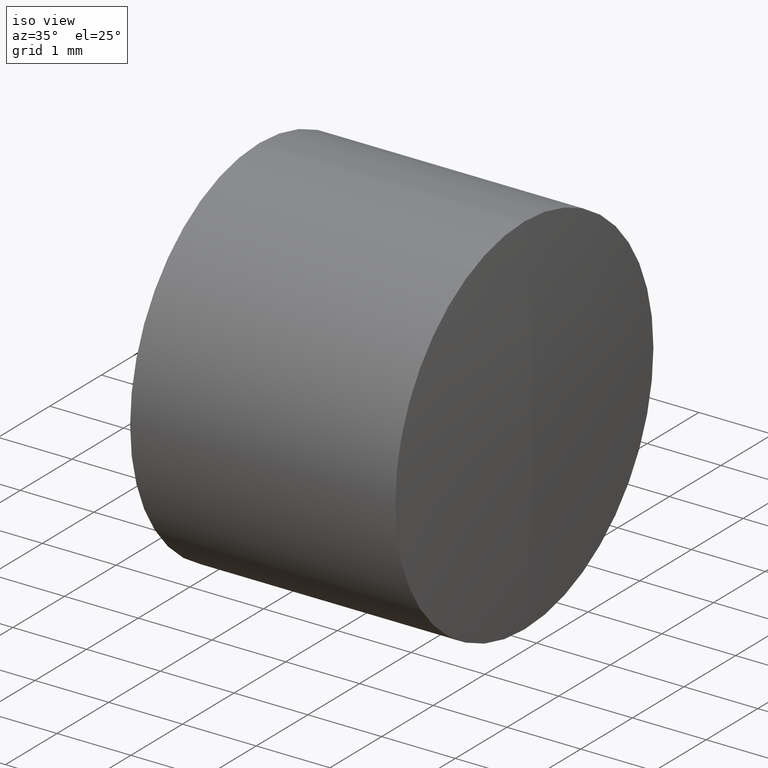
[diagram: clean part render]
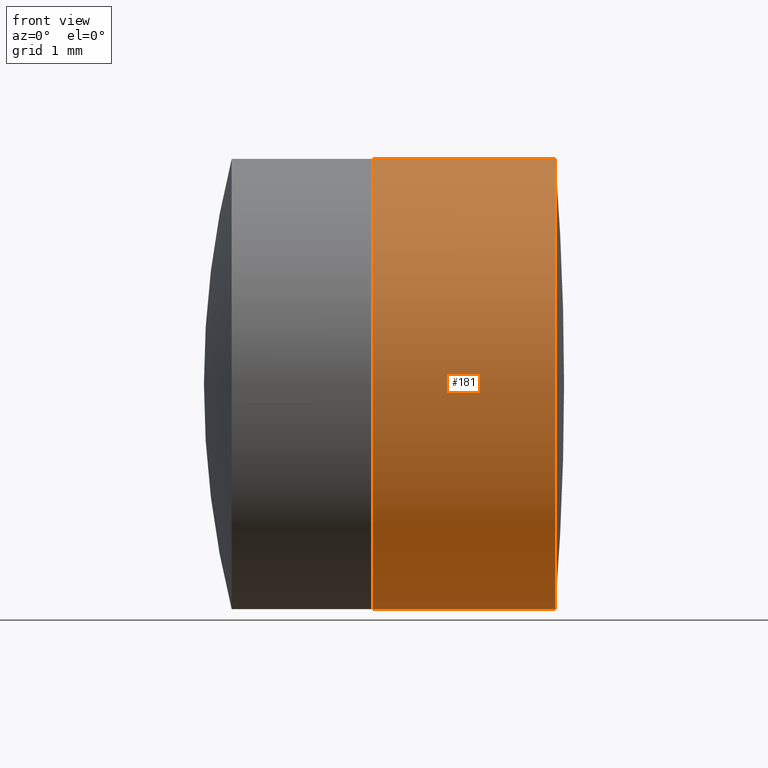
[diagram: tour spotlight — one face highlighted and labeled with its STEP entity id]
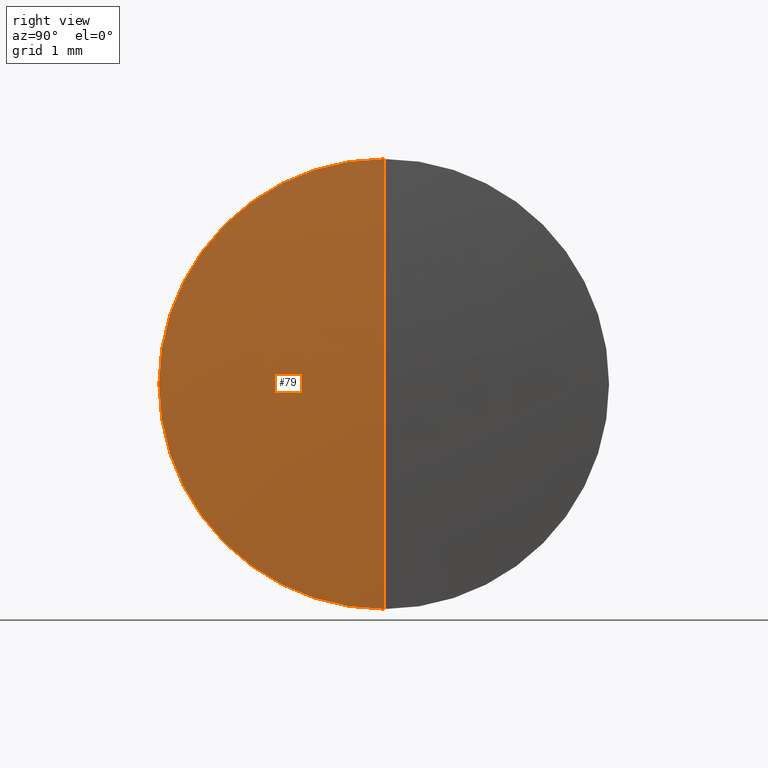
[diagram: tour spotlight — one face highlighted and labeled with its STEP entity id]
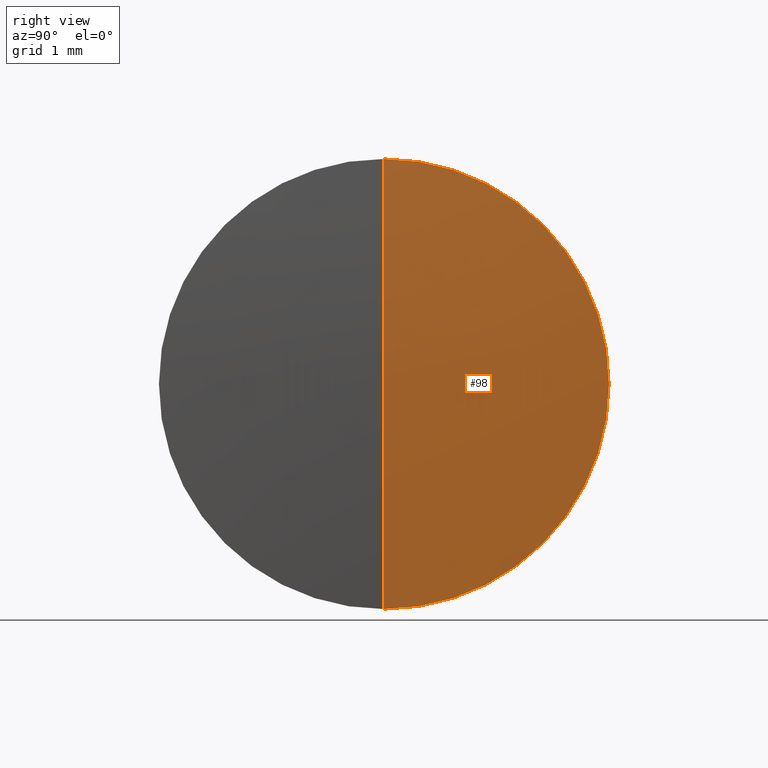
[diagram: tour spotlight — one face highlighted and labeled with its STEP entity id]
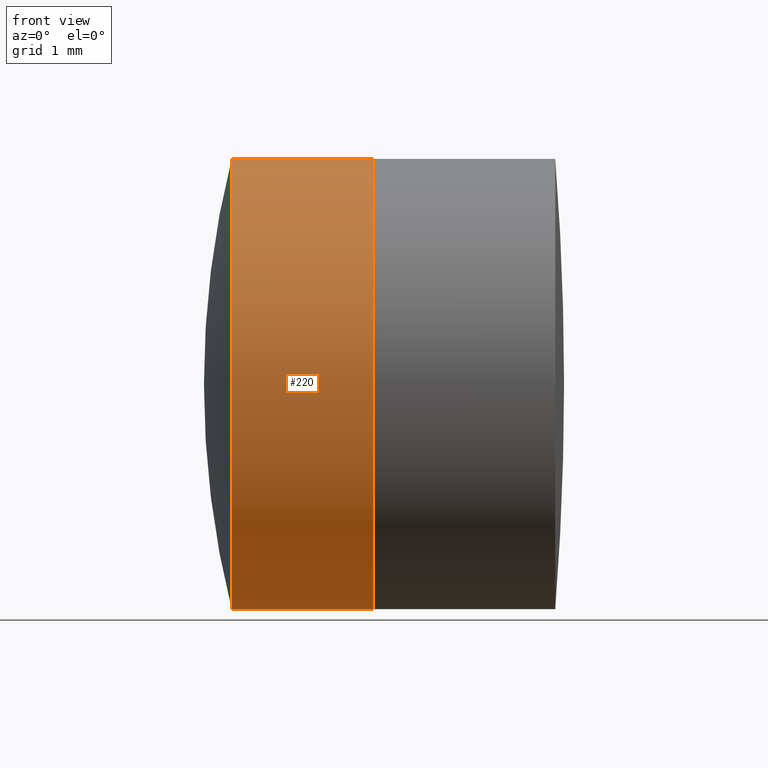
[diagram: tour spotlight — one face highlighted and labeled with its STEP entity id]
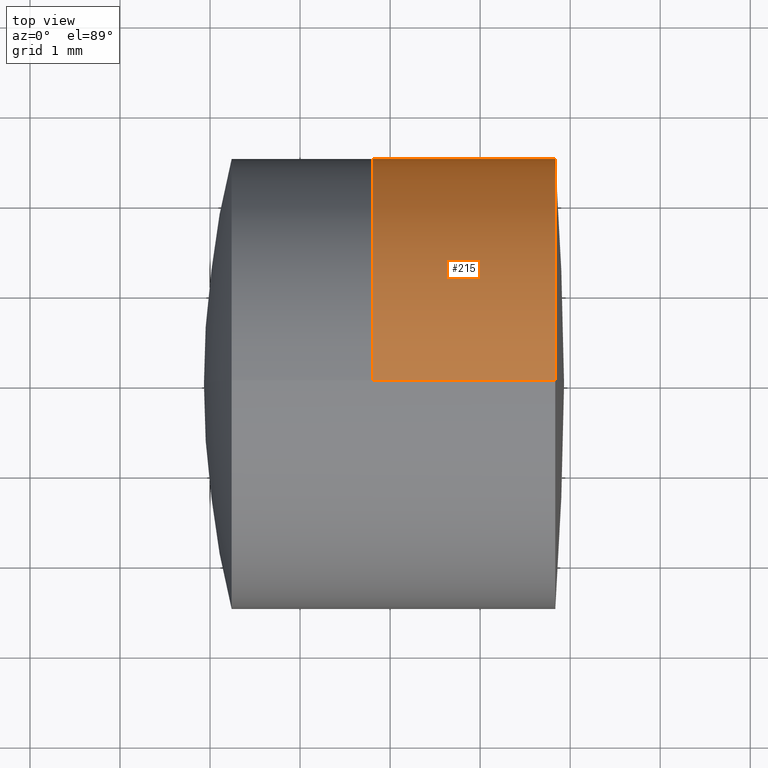
[diagram: tour spotlight — one face highlighted and labeled with its STEP entity id]
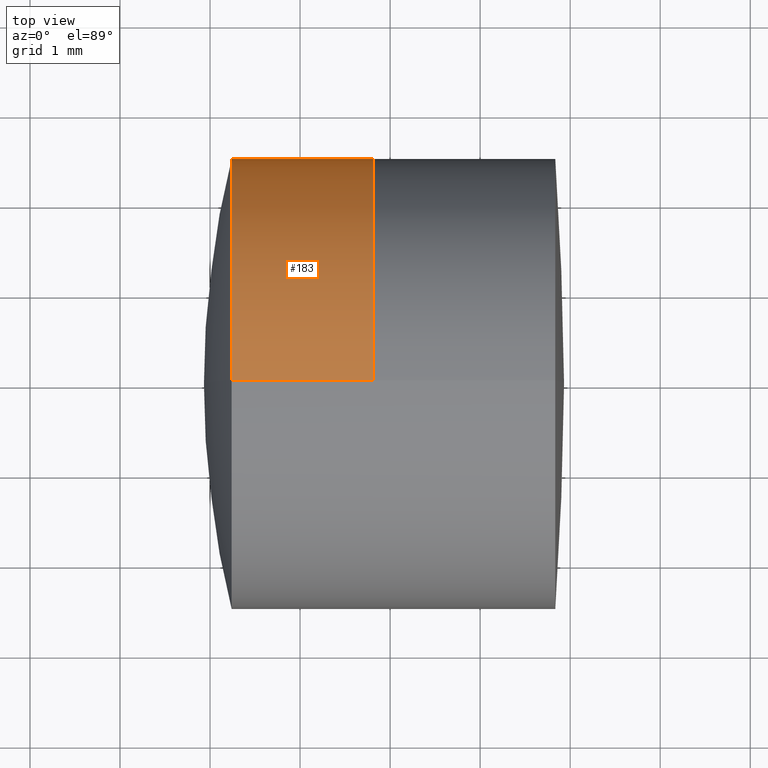
[diagram: tour spotlight — one face highlighted and labeled with its STEP entity id]
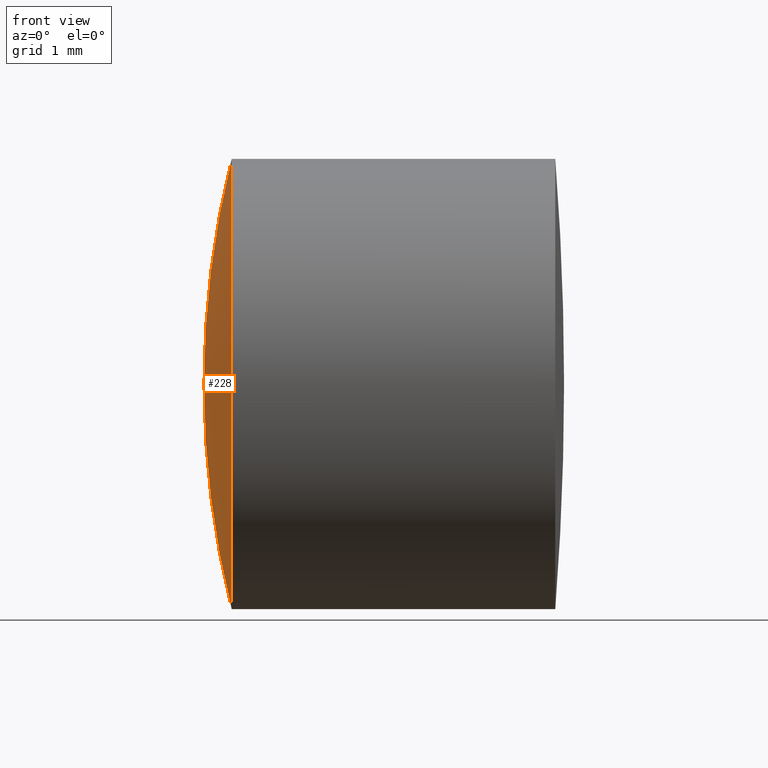
[diagram: tour spotlight — one face highlighted and labeled with its STEP entity id]
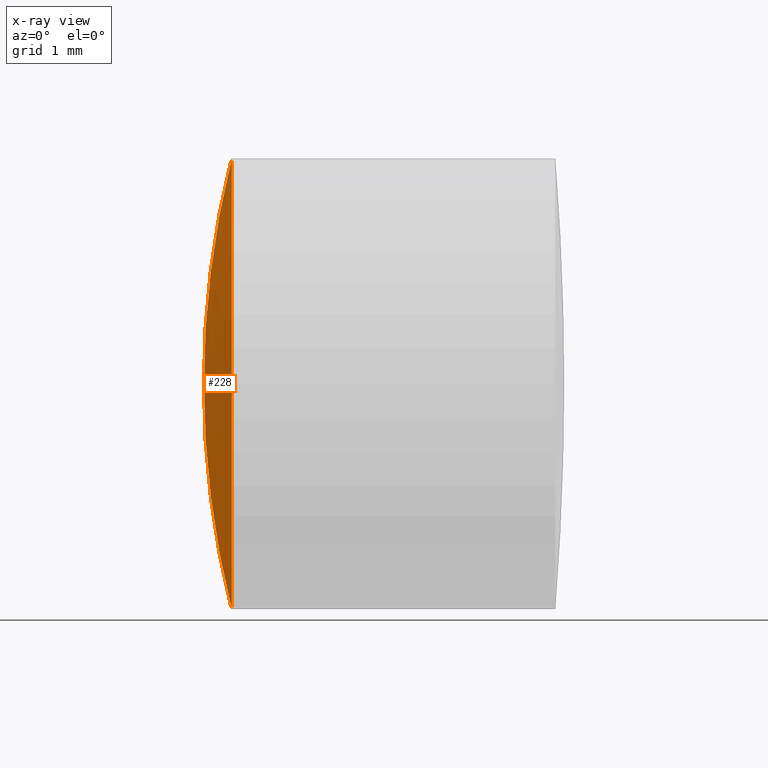
[diagram: x-ray of the same camera — body ghosted, this tour face saturated]
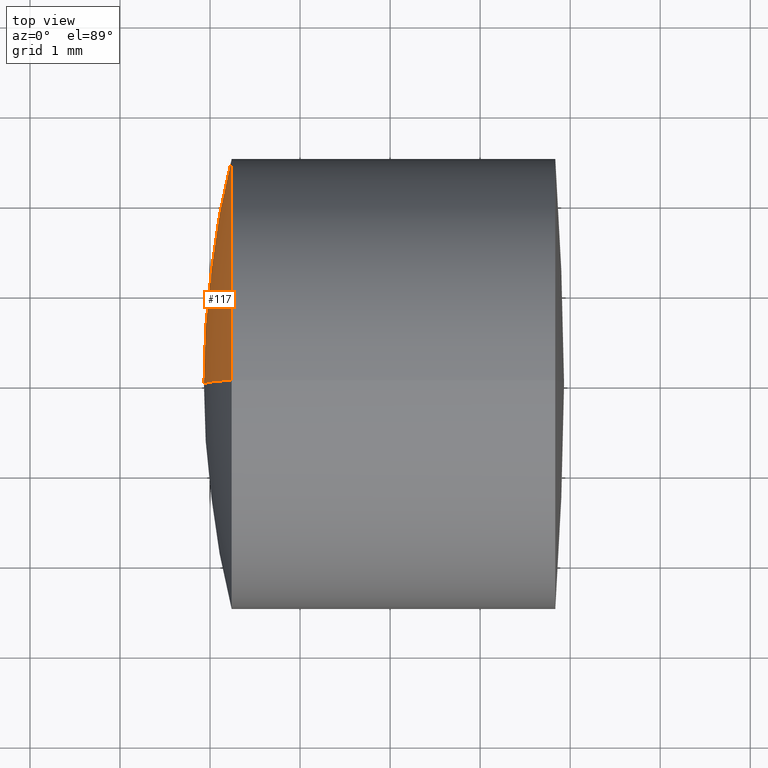
[diagram: tour spotlight — one face highlighted and labeled with its STEP entity id]
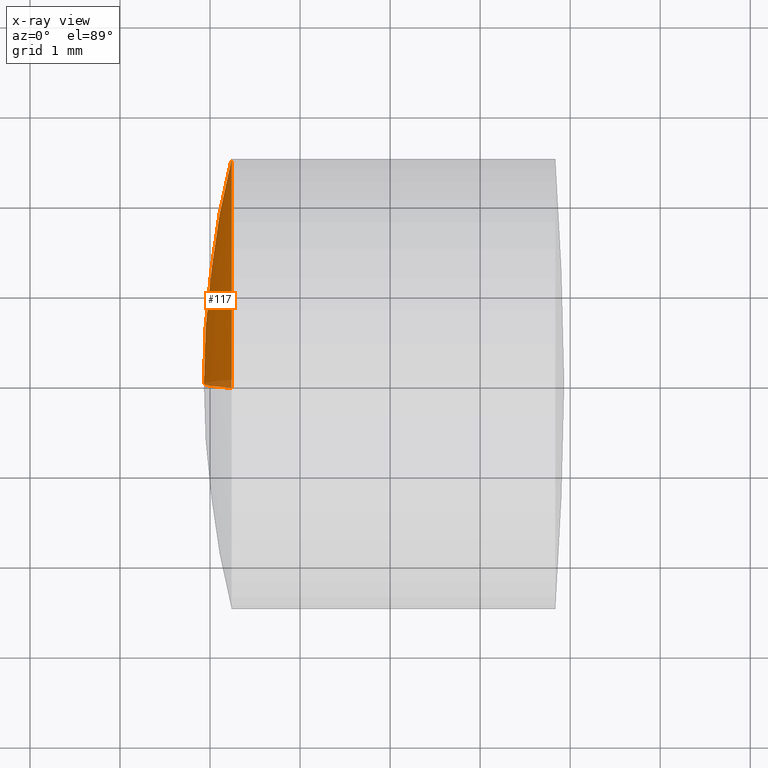
[diagram: x-ray of the same camera — body ghosted, this tour face saturated]
A machine part: a face-by-face anatomy tour. The part has 12 B-rep faces; the first image is the clean iso view, then the 8 largest visible faces are spotlighted one at a time (largest first), each with its STEP entity span.

Face 1 — front view, entity #181. In plain terms, the highlighted cylindrical surface (partial cylindrical patch) has radius 2.5 mm, axis along (-1, -0, -0).
Definition (entity closure, byte-faithful):
#4 = EDGE_CURVE ( 'NONE', #38, #26, #173, .T. ) ;
#9 = EDGE_CURVE ( 'NONE', #234, #38, #161, .T. ) ;
#26 = VERTEX_POINT ( 'NONE', #187 ) ;
#38 = VERTEX_POINT ( 'NONE', #176 ) ;
#65 = CARTESIAN_POINT ( 'NONE',  ( -0.5519199926577972300, 3.061616997868384100E-016, -2.500000000000000900 ) ) ;
#66 = ORIENTED_EDGE ( 'NONE', *, *, #4, .T. ) ;
#72 = AXIS2_PLACEMENT_3D ( 'NONE', #139, #337, #141 ) ;
#75 = CARTESIAN_POINT ( 'NONE',  ( -0.5519199926577972300, 0.0000000000000000000, 2.500000000000000900 ) ) ;
#82 = CIRCLE ( 'NONE', #72, 2.500000000000001300 ) ;
#104 = EDGE_LOOP ( 'NONE', ( #252, #168, #66, #120 ) ) ;
#120 = ORIENTED_EDGE ( 'NONE', *, *, #222, .F. ) ;
#121 = CARTESIAN_POINT ( 'NONE',  ( 264.8346489604336400, 3.061616997868384100E-016, -2.500000000000000400 ) ) ;
#125 = DIRECTION ( 'NONE',  ( 0.0000000000000000000, 0.0000000000000000000, 1.000000000000000000 ) ) ;
#126 = CARTESIAN_POINT ( 'NONE',  ( 264.8346489604336400, 0.0000000000000000000, 0.0000000000000000000 ) ) ;
#139 = CARTESIAN_POINT ( 'NONE',  ( 262.8091958044815900, 0.0000000000000000000, 0.0000000000000000000 ) ) ;
#141 = DIRECTION ( 'NONE',  ( 0.0000000000000000000, 0.0000000000000000000, 1.000000000000000000 ) ) ;
#144 = DIRECTION ( 'NONE',  ( -1.000000000000000000, -0.0000000000000000000, -0.0000000000000000000 ) ) ;
#150 = VECTOR ( 'NONE', #272, 1000.000000000000000 ) ;
#161 = CIRCLE ( 'NONE', #310, 2.500000000000000400 ) ;
#163 = DIRECTION ( 'NONE',  ( -1.000000000000000000, -0.0000000000000000000, -0.0000000000000000000 ) ) ;
#166 = AXIS2_PLACEMENT_3D ( 'NONE', #172, #144, #312 ) ;
#167 = CYLINDRICAL_SURFACE ( 'NONE', #166, 2.500000000000000900 ) ;
#168 = ORIENTED_EDGE ( 'NONE', *, *, #9, .T. ) ;
#172 = CARTESIAN_POINT ( 'NONE',  ( -0.5519199926577972300, 0.0000000000000000000, 0.0000000000000000000 ) ) ;
#173 = LINE ( 'NONE', #75, #150 ) ;
#176 = CARTESIAN_POINT ( 'NONE',  ( 264.8346489604336400, 0.0000000000000000000, 2.500000000000000400 ) ) ;
#181 = ADVANCED_FACE ( 'NONE', ( #334 ), #167, .T. ) ;
#187 = CARTESIAN_POINT ( 'NONE',  ( 262.8091958044815900, 0.0000000000000000000, 2.500000000000001300 ) ) ;
#201 = VERTEX_POINT ( 'NONE', #250 ) ;
#218 = EDGE_CURVE ( 'NONE', #234, #201, #257, .T. ) ;
#222 = EDGE_CURVE ( 'NONE', #201, #26, #82, .T. ) ;
#234 = VERTEX_POINT ( 'NONE', #121 ) ;
#244 = VECTOR ( 'NONE', #260, 1000.000000000000000 ) ;
#250 = CARTESIAN_POINT ( 'NONE',  ( 262.8091958044815900, 3.061616997868385100E-016, -2.500000000000001300 ) ) ;
#252 = ORIENTED_EDGE ( 'NONE', *, *, #218, .F. ) ;
#257 = LINE ( 'NONE', #65, #244 ) ;
#260 = DIRECTION ( 'NONE',  ( -1.000000000000000000, -0.0000000000000000000, -0.0000000000000000000 ) ) ;
#272 = DIRECTION ( 'NONE',  ( -1.000000000000000000, -0.0000000000000000000, -0.0000000000000000000 ) ) ;
#310 = AXIS2_PLACEMENT_3D ( 'NONE', #126, #163, #125 ) ;
#312 = DIRECTION ( 'NONE',  ( 0.0000000000000000000, 0.0000000000000000000, 1.000000000000000000 ) ) ;
#334 = FACE_OUTER_BOUND ( 'NONE', #104, .T. ) ;
#337 = DIRECTION ( 'NONE',  ( -1.000000000000000000, -0.0000000000000000000, -0.0000000000000000000 ) ) ;

Face 2 — right view, entity #79. In plain terms, the highlighted spherical surface has radius 32.1 mm.
Definition (entity closure, byte-faithful):
#9 = EDGE_CURVE ( 'NONE', #234, #38, #161, .T. ) ;
#19 = SPHERICAL_SURFACE ( 'NONE', #238, 32.09999999999994500 ) ;
#28 = ORIENTED_EDGE ( 'NONE', *, *, #9, .F. ) ;
#32 = DIRECTION ( 'NONE',  ( 0.0000000000000000000, 0.0000000000000000000, 1.000000000000000000 ) ) ;
#38 = VERTEX_POINT ( 'NONE', #176 ) ;
#45 = EDGE_LOOP ( 'NONE', ( #245, #153, #28 ) ) ;
#63 = DIRECTION ( 'NONE',  ( 0.0000000000000000000, -1.224646799147353000E-016, 1.000000000000000000 ) ) ;
#68 = CARTESIAN_POINT ( 'NONE',  ( 232.8321490580823100, 0.0000000000000000000, 0.0000000000000000000 ) ) ;
#79 = ADVANCED_FACE ( 'NONE', ( #256 ), #19, .T. ) ;
#111 = CIRCLE ( 'NONE', #291, 32.09999999999994500 ) ;
#121 = CARTESIAN_POINT ( 'NONE',  ( 264.8346489604336400, 3.061616997868384100E-016, -2.500000000000000400 ) ) ;
#125 = DIRECTION ( 'NONE',  ( 0.0000000000000000000, 0.0000000000000000000, 1.000000000000000000 ) ) ;
#126 = CARTESIAN_POINT ( 'NONE',  ( 264.8346489604336400, 0.0000000000000000000, 0.0000000000000000000 ) ) ;
#147 = CIRCLE ( 'NONE', #286, 32.09999999999994500 ) ;
#153 = ORIENTED_EDGE ( 'NONE', *, *, #159, .T. ) ;
#159 = EDGE_CURVE ( 'NONE', #227, #38, #147, .T. ) ;
#161 = CIRCLE ( 'NONE', #310, 2.500000000000000400 ) ;
#163 = DIRECTION ( 'NONE',  ( -1.000000000000000000, -0.0000000000000000000, -0.0000000000000000000 ) ) ;
#164 = DIRECTION ( 'NONE',  ( 0.0000000000000000000, -1.000000000000000000, 0.0000000000000000000 ) ) ;
#176 = CARTESIAN_POINT ( 'NONE',  ( 264.8346489604336400, 0.0000000000000000000, 2.500000000000000400 ) ) ;
#182 = DIRECTION ( 'NONE',  ( 0.0000000000000000000, 1.000000000000000000, 0.0000000000000000000 ) ) ;
#188 = CARTESIAN_POINT ( 'NONE',  ( 232.8321490580823100, 0.0000000000000000000, 0.0000000000000000000 ) ) ;
#223 = CARTESIAN_POINT ( 'NONE',  ( 264.9321490580822500, 0.0000000000000000000, 1.965558112631498300E-015 ) ) ;
#227 = VERTEX_POINT ( 'NONE', #223 ) ;
#234 = VERTEX_POINT ( 'NONE', #121 ) ;
#235 = CARTESIAN_POINT ( 'NONE',  ( 232.8321490580823100, 0.0000000000000000000, 0.0000000000000000000 ) ) ;
#238 = AXIS2_PLACEMENT_3D ( 'NONE', #188, #182, #32 ) ;
#245 = ORIENTED_EDGE ( 'NONE', *, *, #299, .F. ) ;
#256 = FACE_OUTER_BOUND ( 'NONE', #45, .T. ) ;
#270 = DIRECTION ( 'NONE',  ( -0.0000000000000000000, 1.000000000000000000, 1.224646799147353200E-016 ) ) ;
#286 = AXIS2_PLACEMENT_3D ( 'NONE', #235, #164, #296 ) ;
#291 = AXIS2_PLACEMENT_3D ( 'NONE', #68, #270, #63 ) ;
#296 = DIRECTION ( 'NONE',  ( 0.0000000000000000000, 0.0000000000000000000, -1.000000000000000000 ) ) ;
#299 = EDGE_CURVE ( 'NONE', #227, #234, #111, .T. ) ;
#310 = AXIS2_PLACEMENT_3D ( 'NONE', #126, #163, #125 ) ;

Face 3 — right view, entity #98. In plain terms, the highlighted spherical surface has radius 32.1 mm.
Definition (entity closure, byte-faithful):
#3 = EDGE_CURVE ( 'NONE', #38, #234, #325, .T. ) ;
#5 = FACE_OUTER_BOUND ( 'NONE', #280, .T. ) ;
#17 = DIRECTION ( 'NONE',  ( 0.0000000000000000000, 1.000000000000000000, 0.0000000000000000000 ) ) ;
#22 = CARTESIAN_POINT ( 'NONE',  ( 232.8321490580823100, 0.0000000000000000000, 0.0000000000000000000 ) ) ;
#35 = AXIS2_PLACEMENT_3D ( 'NONE', #170, #233, #206 ) ;
#38 = VERTEX_POINT ( 'NONE', #176 ) ;
#63 = DIRECTION ( 'NONE',  ( 0.0000000000000000000, -1.224646799147353000E-016, 1.000000000000000000 ) ) ;
#68 = CARTESIAN_POINT ( 'NONE',  ( 232.8321490580823100, 0.0000000000000000000, 0.0000000000000000000 ) ) ;
#98 = ADVANCED_FACE ( 'NONE', ( #5 ), #99, .T. ) ;
#99 = SPHERICAL_SURFACE ( 'NONE', #130, 32.09999999999994500 ) ;
#101 = ORIENTED_EDGE ( 'NONE', *, *, #3, .F. ) ;
#111 = CIRCLE ( 'NONE', #291, 32.09999999999994500 ) ;
#121 = CARTESIAN_POINT ( 'NONE',  ( 264.8346489604336400, 3.061616997868384100E-016, -2.500000000000000400 ) ) ;
#130 = AXIS2_PLACEMENT_3D ( 'NONE', #22, #17, #178 ) ;
#133 = ORIENTED_EDGE ( 'NONE', *, *, #159, .F. ) ;
#147 = CIRCLE ( 'NONE', #286, 32.09999999999994500 ) ;
#159 = EDGE_CURVE ( 'NONE', #227, #38, #147, .T. ) ;
#164 = DIRECTION ( 'NONE',  ( 0.0000000000000000000, -1.000000000000000000, 0.0000000000000000000 ) ) ;
#170 = CARTESIAN_POINT ( 'NONE',  ( 264.8346489604336400, 0.0000000000000000000, 0.0000000000000000000 ) ) ;
#176 = CARTESIAN_POINT ( 'NONE',  ( 264.8346489604336400, 0.0000000000000000000, 2.500000000000000400 ) ) ;
#178 = DIRECTION ( 'NONE',  ( 0.0000000000000000000, 0.0000000000000000000, 1.000000000000000000 ) ) ;
#206 = DIRECTION ( 'NONE',  ( 0.0000000000000000000, 0.0000000000000000000, 1.000000000000000000 ) ) ;
#223 = CARTESIAN_POINT ( 'NONE',  ( 264.9321490580822500, 0.0000000000000000000, 1.965558112631498300E-015 ) ) ;
#227 = VERTEX_POINT ( 'NONE', #223 ) ;
#233 = DIRECTION ( 'NONE',  ( -1.000000000000000000, -0.0000000000000000000, -0.0000000000000000000 ) ) ;
#234 = VERTEX_POINT ( 'NONE', #121 ) ;
#235 = CARTESIAN_POINT ( 'NONE',  ( 232.8321490580823100, 0.0000000000000000000, 0.0000000000000000000 ) ) ;
#270 = DIRECTION ( 'NONE',  ( -0.0000000000000000000, 1.000000000000000000, 1.224646799147353200E-016 ) ) ;
#280 = EDGE_LOOP ( 'NONE', ( #133, #290, #101 ) ) ;
#286 = AXIS2_PLACEMENT_3D ( 'NONE', #235, #164, #296 ) ;
#290 = ORIENTED_EDGE ( 'NONE', *, *, #299, .T. ) ;
#291 = AXIS2_PLACEMENT_3D ( 'NONE', #68, #270, #63 ) ;
#296 = DIRECTION ( 'NONE',  ( 0.0000000000000000000, 0.0000000000000000000, -1.000000000000000000 ) ) ;
#299 = EDGE_CURVE ( 'NONE', #227, #234, #111, .T. ) ;
#325 = CIRCLE ( 'NONE', #35, 2.500000000000000400 ) ;

Face 4 — front view, entity #220. In plain terms, the highlighted cylindrical surface (partial cylindrical patch) has radius 2.5 mm, axis along (-1, -0, -0).
Definition (entity closure, byte-faithful):
#6 = LINE ( 'NONE', #86, #326 ) ;
#10 = CARTESIAN_POINT ( 'NONE',  ( 262.8091958044815900, 0.0000000000000000000, 0.0000000000000000000 ) ) ;
#12 = CARTESIAN_POINT ( 'NONE',  ( 261.2401522606448300, 0.0000000000000000000, 0.0000000000000000000 ) ) ;
#13 = VECTOR ( 'NONE', #293, 1000.000000000000000 ) ;
#23 = CARTESIAN_POINT ( 'NONE',  ( 262.8091958044815900, 0.0000000000000000000, 2.500000000000000000 ) ) ;
#30 = DIRECTION ( 'NONE',  ( 0.0000000000000000000, 0.0000000000000000000, 1.000000000000000000 ) ) ;
#39 = DIRECTION ( 'NONE',  ( 0.0000000000000000000, 0.0000000000000000000, 1.000000000000000000 ) ) ;
#40 = DIRECTION ( 'NONE',  ( -1.000000000000000000, -0.0000000000000000000, -0.0000000000000000000 ) ) ;
#54 = CIRCLE ( 'NONE', #157, 2.500000000000000000 ) ;
#60 = ORIENTED_EDGE ( 'NONE', *, *, #328, .F. ) ;
#61 = FACE_OUTER_BOUND ( 'NONE', #273, .T. ) ;
#74 = EDGE_CURVE ( 'NONE', #304, #207, #313, .T. ) ;
#86 = CARTESIAN_POINT ( 'NONE',  ( 124.5233095260452400, 3.061616997868383100E-016, -2.500000000000000000 ) ) ;
#97 = CYLINDRICAL_SURFACE ( 'NONE', #102, 2.500000000000000000 ) ;
#102 = AXIS2_PLACEMENT_3D ( 'NONE', #251, #105, #184 ) ;
#105 = DIRECTION ( 'NONE',  ( -1.000000000000000000, -0.0000000000000000000, -0.0000000000000000000 ) ) ;
#108 = ORIENTED_EDGE ( 'NONE', *, *, #74, .T. ) ;
#143 = LINE ( 'NONE', #292, #13 ) ;
#148 = EDGE_CURVE ( 'NONE', #155, #315, #54, .T. ) ;
#155 = VERTEX_POINT ( 'NONE', #231 ) ;
#157 = AXIS2_PLACEMENT_3D ( 'NONE', #12, #236, #30 ) ;
#169 = EDGE_CURVE ( 'NONE', #207, #315, #143, .T. ) ;
#184 = DIRECTION ( 'NONE',  ( 0.0000000000000000000, 0.0000000000000000000, 1.000000000000000000 ) ) ;
#207 = VERTEX_POINT ( 'NONE', #23 ) ;
#220 = ADVANCED_FACE ( 'NONE', ( #61 ), #97, .T. ) ;
#231 = CARTESIAN_POINT ( 'NONE',  ( 261.2401522606448300, 0.0000000000000000000, -2.500000000000001300 ) ) ;
#236 = DIRECTION ( 'NONE',  ( -1.000000000000000000, -0.0000000000000000000, -0.0000000000000000000 ) ) ;
#247 = ORIENTED_EDGE ( 'NONE', *, *, #148, .F. ) ;
#251 = CARTESIAN_POINT ( 'NONE',  ( 124.5233095260452400, 0.0000000000000000000, 0.0000000000000000000 ) ) ;
#261 = CARTESIAN_POINT ( 'NONE',  ( 261.2401522606448300, -3.061616997868385100E-016, 2.500000000000001300 ) ) ;
#273 = EDGE_LOOP ( 'NONE', ( #60, #108, #322, #247 ) ) ;
#283 = CARTESIAN_POINT ( 'NONE',  ( 262.8091958044815900, 3.061616997868383100E-016, -2.500000000000000000 ) ) ;
#292 = CARTESIAN_POINT ( 'NONE',  ( 124.5233095260452400, 0.0000000000000000000, 2.500000000000000000 ) ) ;
#293 = DIRECTION ( 'NONE',  ( -1.000000000000000000, -0.0000000000000000000, -0.0000000000000000000 ) ) ;
#304 = VERTEX_POINT ( 'NONE', #283 ) ;
#311 = DIRECTION ( 'NONE',  ( -1.000000000000000000, -0.0000000000000000000, -0.0000000000000000000 ) ) ;
#313 = CIRCLE ( 'NONE', #341, 2.500000000000000000 ) ;
#315 = VERTEX_POINT ( 'NONE', #261 ) ;
#322 = ORIENTED_EDGE ( 'NONE', *, *, #169, .T. ) ;
#326 = VECTOR ( 'NONE', #311, 1000.000000000000000 ) ;
#328 = EDGE_CURVE ( 'NONE', #304, #155, #6, .T. ) ;
#341 = AXIS2_PLACEMENT_3D ( 'NONE', #10, #40, #39 ) ;

Face 5 — top view, entity #215. In plain terms, the highlighted cylindrical surface (partial cylindrical patch) has radius 2.5 mm, axis along (-1, -0, -0).
Definition (entity closure, byte-faithful):
#3 = EDGE_CURVE ( 'NONE', #38, #234, #325, .T. ) ;
#4 = EDGE_CURVE ( 'NONE', #38, #26, #173, .T. ) ;
#20 = CIRCLE ( 'NONE', #254, 2.500000000000001300 ) ;
#26 = VERTEX_POINT ( 'NONE', #187 ) ;
#35 = AXIS2_PLACEMENT_3D ( 'NONE', #170, #233, #206 ) ;
#38 = VERTEX_POINT ( 'NONE', #176 ) ;
#56 = DIRECTION ( 'NONE',  ( -1.000000000000000000, -0.0000000000000000000, -0.0000000000000000000 ) ) ;
#62 = EDGE_LOOP ( 'NONE', ( #333, #64, #113, #262 ) ) ;
#64 = ORIENTED_EDGE ( 'NONE', *, *, #218, .T. ) ;
#65 = CARTESIAN_POINT ( 'NONE',  ( -0.5519199926577972300, 3.061616997868384100E-016, -2.500000000000000900 ) ) ;
#75 = CARTESIAN_POINT ( 'NONE',  ( -0.5519199926577972300, 0.0000000000000000000, 2.500000000000000900 ) ) ;
#77 = CARTESIAN_POINT ( 'NONE',  ( -0.5519199926577972300, 0.0000000000000000000, 0.0000000000000000000 ) ) ;
#88 = AXIS2_PLACEMENT_3D ( 'NONE', #77, #306, #179 ) ;
#106 = EDGE_CURVE ( 'NONE', #26, #201, #20, .T. ) ;
#107 = FACE_OUTER_BOUND ( 'NONE', #62, .T. ) ;
#113 = ORIENTED_EDGE ( 'NONE', *, *, #106, .F. ) ;
#121 = CARTESIAN_POINT ( 'NONE',  ( 264.8346489604336400, 3.061616997868384100E-016, -2.500000000000000400 ) ) ;
#150 = VECTOR ( 'NONE', #272, 1000.000000000000000 ) ;
#170 = CARTESIAN_POINT ( 'NONE',  ( 264.8346489604336400, 0.0000000000000000000, 0.0000000000000000000 ) ) ;
#173 = LINE ( 'NONE', #75, #150 ) ;
#176 = CARTESIAN_POINT ( 'NONE',  ( 264.8346489604336400, 0.0000000000000000000, 2.500000000000000400 ) ) ;
#179 = DIRECTION ( 'NONE',  ( 0.0000000000000000000, 0.0000000000000000000, 1.000000000000000000 ) ) ;
#187 = CARTESIAN_POINT ( 'NONE',  ( 262.8091958044815900, 0.0000000000000000000, 2.500000000000001300 ) ) ;
#201 = VERTEX_POINT ( 'NONE', #250 ) ;
#206 = DIRECTION ( 'NONE',  ( 0.0000000000000000000, 0.0000000000000000000, 1.000000000000000000 ) ) ;
#215 = ADVANCED_FACE ( 'NONE', ( #107 ), #323, .T. ) ;
#218 = EDGE_CURVE ( 'NONE', #234, #201, #257, .T. ) ;
#230 = DIRECTION ( 'NONE',  ( 0.0000000000000000000, 0.0000000000000000000, 1.000000000000000000 ) ) ;
#233 = DIRECTION ( 'NONE',  ( -1.000000000000000000, -0.0000000000000000000, -0.0000000000000000000 ) ) ;
#234 = VERTEX_POINT ( 'NONE', #121 ) ;
#244 = VECTOR ( 'NONE', #260, 1000.000000000000000 ) ;
#250 = CARTESIAN_POINT ( 'NONE',  ( 262.8091958044815900, 3.061616997868385100E-016, -2.500000000000001300 ) ) ;
#254 = AXIS2_PLACEMENT_3D ( 'NONE', #263, #56, #230 ) ;
#257 = LINE ( 'NONE', #65, #244 ) ;
#260 = DIRECTION ( 'NONE',  ( -1.000000000000000000, -0.0000000000000000000, -0.0000000000000000000 ) ) ;
#262 = ORIENTED_EDGE ( 'NONE', *, *, #4, .F. ) ;
#263 = CARTESIAN_POINT ( 'NONE',  ( 262.8091958044815900, 0.0000000000000000000, 0.0000000000000000000 ) ) ;
#272 = DIRECTION ( 'NONE',  ( -1.000000000000000000, -0.0000000000000000000, -0.0000000000000000000 ) ) ;
#306 = DIRECTION ( 'NONE',  ( -1.000000000000000000, -0.0000000000000000000, -0.0000000000000000000 ) ) ;
#323 = CYLINDRICAL_SURFACE ( 'NONE', #88, 2.500000000000000900 ) ;
#325 = CIRCLE ( 'NONE', #35, 2.500000000000000400 ) ;
#333 = ORIENTED_EDGE ( 'NONE', *, *, #3, .T. ) ;

Face 6 — top view, entity #183. In plain terms, the highlighted cylindrical surface (partial cylindrical patch) has radius 2.5 mm, axis along (-1, -0, -0).
Definition (entity closure, byte-faithful):
#1 = CARTESIAN_POINT ( 'NONE',  ( 124.5233095260452400, 0.0000000000000000000, 0.0000000000000000000 ) ) ;
#6 = LINE ( 'NONE', #86, #326 ) ;
#13 = VECTOR ( 'NONE', #293, 1000.000000000000000 ) ;
#16 = AXIS2_PLACEMENT_3D ( 'NONE', #309, #136, #81 ) ;
#23 = CARTESIAN_POINT ( 'NONE',  ( 262.8091958044815900, 0.0000000000000000000, 2.500000000000000000 ) ) ;
#37 = CIRCLE ( 'NONE', #196, 2.500000000000000000 ) ;
#44 = AXIS2_PLACEMENT_3D ( 'NONE', #1, #239, #243 ) ;
#81 = DIRECTION ( 'NONE',  ( 0.0000000000000000000, 0.0000000000000000000, 1.000000000000000000 ) ) ;
#85 = ORIENTED_EDGE ( 'NONE', *, *, #343, .T. ) ;
#86 = CARTESIAN_POINT ( 'NONE',  ( 124.5233095260452400, 3.061616997868383100E-016, -2.500000000000000000 ) ) ;
#89 = ORIENTED_EDGE ( 'NONE', *, *, #328, .T. ) ;
#136 = DIRECTION ( 'NONE',  ( -1.000000000000000000, -0.0000000000000000000, -0.0000000000000000000 ) ) ;
#143 = LINE ( 'NONE', #292, #13 ) ;
#155 = VERTEX_POINT ( 'NONE', #231 ) ;
#169 = EDGE_CURVE ( 'NONE', #207, #315, #143, .T. ) ;
#183 = ADVANCED_FACE ( 'NONE', ( #186 ), #318, .T. ) ;
#186 = FACE_OUTER_BOUND ( 'NONE', #282, .T. ) ;
#196 = AXIS2_PLACEMENT_3D ( 'NONE', #204, #229, #331 ) ;
#204 = CARTESIAN_POINT ( 'NONE',  ( 262.8091958044815900, 0.0000000000000000000, 0.0000000000000000000 ) ) ;
#207 = VERTEX_POINT ( 'NONE', #23 ) ;
#229 = DIRECTION ( 'NONE',  ( -1.000000000000000000, -0.0000000000000000000, -0.0000000000000000000 ) ) ;
#231 = CARTESIAN_POINT ( 'NONE',  ( 261.2401522606448300, 0.0000000000000000000, -2.500000000000001300 ) ) ;
#237 = ORIENTED_EDGE ( 'NONE', *, *, #271, .F. ) ;
#239 = DIRECTION ( 'NONE',  ( -1.000000000000000000, -0.0000000000000000000, -0.0000000000000000000 ) ) ;
#243 = DIRECTION ( 'NONE',  ( 0.0000000000000000000, 0.0000000000000000000, 1.000000000000000000 ) ) ;
#261 = CARTESIAN_POINT ( 'NONE',  ( 261.2401522606448300, -3.061616997868385100E-016, 2.500000000000001300 ) ) ;
#271 = EDGE_CURVE ( 'NONE', #315, #155, #279, .T. ) ;
#279 = CIRCLE ( 'NONE', #16, 2.500000000000000000 ) ;
#282 = EDGE_LOOP ( 'NONE', ( #85, #89, #237, #324 ) ) ;
#283 = CARTESIAN_POINT ( 'NONE',  ( 262.8091958044815900, 3.061616997868383100E-016, -2.500000000000000000 ) ) ;
#292 = CARTESIAN_POINT ( 'NONE',  ( 124.5233095260452400, 0.0000000000000000000, 2.500000000000000000 ) ) ;
#293 = DIRECTION ( 'NONE',  ( -1.000000000000000000, -0.0000000000000000000, -0.0000000000000000000 ) ) ;
#304 = VERTEX_POINT ( 'NONE', #283 ) ;
#309 = CARTESIAN_POINT ( 'NONE',  ( 261.2401522606448300, 0.0000000000000000000, 0.0000000000000000000 ) ) ;
#311 = DIRECTION ( 'NONE',  ( -1.000000000000000000, -0.0000000000000000000, -0.0000000000000000000 ) ) ;
#315 = VERTEX_POINT ( 'NONE', #261 ) ;
#318 = CYLINDRICAL_SURFACE ( 'NONE', #44, 2.500000000000000000 ) ;
#324 = ORIENTED_EDGE ( 'NONE', *, *, #169, .F. ) ;
#326 = VECTOR ( 'NONE', #311, 1000.000000000000000 ) ;
#328 = EDGE_CURVE ( 'NONE', #304, #155, #6, .T. ) ;
#331 = DIRECTION ( 'NONE',  ( 0.0000000000000000000, 0.0000000000000000000, 1.000000000000000000 ) ) ;
#343 = EDGE_CURVE ( 'NONE', #207, #304, #37, .T. ) ;

Face 7 — front view, entity #228. An x-ray twin of the same camera follows (body ghosted, this face saturated) — the face is partly hidden behind the body. In plain terms, the highlighted spherical surface has radius 10.3 mm.
Definition (entity closure, byte-faithful):
#12 = CARTESIAN_POINT ( 'NONE',  ( 261.2401522606448300, 0.0000000000000000000, 0.0000000000000000000 ) ) ;
#21 = CIRCLE ( 'NONE', #345, 10.30000000000001500 ) ;
#25 = VERTEX_POINT ( 'NONE', #156 ) ;
#30 = DIRECTION ( 'NONE',  ( 0.0000000000000000000, 0.0000000000000000000, 1.000000000000000000 ) ) ;
#42 = SPHERICAL_SURFACE ( 'NONE', #226, 10.30000000000001500 ) ;
#54 = CIRCLE ( 'NONE', #157, 2.500000000000000000 ) ;
#59 = CIRCLE ( 'NONE', #307, 10.30000000000001500 ) ;
#131 = FACE_OUTER_BOUND ( 'NONE', #342, .T. ) ;
#138 = DIRECTION ( 'NONE',  ( 0.0000000000000000000, 0.0000000000000000000, -1.000000000000000000 ) ) ;
#145 = DIRECTION ( 'NONE',  ( 0.0000000000000000000, 0.0000000000000000000, 1.000000000000000000 ) ) ;
#148 = EDGE_CURVE ( 'NONE', #155, #315, #54, .T. ) ;
#155 = VERTEX_POINT ( 'NONE', #231 ) ;
#156 = CARTESIAN_POINT ( 'NONE',  ( 260.9321490580822500, 0.0000000000000000000, -6.102235094014472000E-016 ) ) ;
#157 = AXIS2_PLACEMENT_3D ( 'NONE', #12, #236, #30 ) ;
#180 = ORIENTED_EDGE ( 'NONE', *, *, #289, .T. ) ;
#189 = DIRECTION ( 'NONE',  ( 0.0000000000000000000, -1.000000000000000000, -1.224646799147353200E-016 ) ) ;
#219 = DIRECTION ( 'NONE',  ( -0.0000000000000000000, -1.000000000000000000, -0.0000000000000000000 ) ) ;
#226 = AXIS2_PLACEMENT_3D ( 'NONE', #314, #219, #138 ) ;
#228 = ADVANCED_FACE ( 'NONE', ( #131 ), #42, .T. ) ;
#231 = CARTESIAN_POINT ( 'NONE',  ( 261.2401522606448300, 0.0000000000000000000, -2.500000000000001300 ) ) ;
#232 = CARTESIAN_POINT ( 'NONE',  ( 271.2321490580823100, 0.0000000000000000000, 2.046959215944070700E-017 ) ) ;
#236 = DIRECTION ( 'NONE',  ( -1.000000000000000000, -0.0000000000000000000, -0.0000000000000000000 ) ) ;
#242 = EDGE_CURVE ( 'NONE', #155, #25, #59, .T. ) ;
#261 = CARTESIAN_POINT ( 'NONE',  ( 261.2401522606448300, -3.061616997868385100E-016, 2.500000000000001300 ) ) ;
#275 = DIRECTION ( 'NONE',  ( 0.0000000000000000000, 1.224646799147353200E-016, -1.000000000000000000 ) ) ;
#289 = EDGE_CURVE ( 'NONE', #315, #25, #21, .T. ) ;
#298 = DIRECTION ( 'NONE',  ( 0.0000000000000000000, 1.000000000000000000, -0.0000000000000000000 ) ) ;
#301 = CARTESIAN_POINT ( 'NONE',  ( 271.2321490580823100, 0.0000000000000000000, 2.046959215944070700E-017 ) ) ;
#307 = AXIS2_PLACEMENT_3D ( 'NONE', #301, #298, #145 ) ;
#314 = CARTESIAN_POINT ( 'NONE',  ( 271.2321490580823100, 0.0000000000000000000, 2.046959215944070700E-017 ) ) ;
#315 = VERTEX_POINT ( 'NONE', #261 ) ;
#329 = ORIENTED_EDGE ( 'NONE', *, *, #148, .T. ) ;
#335 = ORIENTED_EDGE ( 'NONE', *, *, #242, .F. ) ;
#342 = EDGE_LOOP ( 'NONE', ( #329, #180, #335 ) ) ;
#345 = AXIS2_PLACEMENT_3D ( 'NONE', #232, #189, #275 ) ;

Face 8 — top view, entity #117. An x-ray twin of the same camera follows (body ghosted, this face saturated) — the face is partly hidden behind the body. In plain terms, the highlighted spherical surface has radius 10.3 mm.
Definition (entity closure, byte-faithful):
#16 = AXIS2_PLACEMENT_3D ( 'NONE', #309, #136, #81 ) ;
#21 = CIRCLE ( 'NONE', #345, 10.30000000000001500 ) ;
#25 = VERTEX_POINT ( 'NONE', #156 ) ;
#43 = SPHERICAL_SURFACE ( 'NONE', #197, 10.30000000000001500 ) ;
#50 = EDGE_LOOP ( 'NONE', ( #174, #258, #70 ) ) ;
#59 = CIRCLE ( 'NONE', #307, 10.30000000000001500 ) ;
#70 = ORIENTED_EDGE ( 'NONE', *, *, #242, .T. ) ;
#81 = DIRECTION ( 'NONE',  ( 0.0000000000000000000, 0.0000000000000000000, 1.000000000000000000 ) ) ;
#117 = ADVANCED_FACE ( 'NONE', ( #338 ), #43, .T. ) ;
#136 = DIRECTION ( 'NONE',  ( -1.000000000000000000, -0.0000000000000000000, -0.0000000000000000000 ) ) ;
#145 = DIRECTION ( 'NONE',  ( 0.0000000000000000000, 0.0000000000000000000, 1.000000000000000000 ) ) ;
#155 = VERTEX_POINT ( 'NONE', #231 ) ;
#156 = CARTESIAN_POINT ( 'NONE',  ( 260.9321490580822500, 0.0000000000000000000, -6.102235094014472000E-016 ) ) ;
#158 = DIRECTION ( 'NONE',  ( -0.0000000000000000000, -1.000000000000000000, -0.0000000000000000000 ) ) ;
#160 = CARTESIAN_POINT ( 'NONE',  ( 271.2321490580823100, 0.0000000000000000000, 2.046959215944070700E-017 ) ) ;
#174 = ORIENTED_EDGE ( 'NONE', *, *, #289, .F. ) ;
#189 = DIRECTION ( 'NONE',  ( 0.0000000000000000000, -1.000000000000000000, -1.224646799147353200E-016 ) ) ;
#197 = AXIS2_PLACEMENT_3D ( 'NONE', #160, #158, #203 ) ;
#203 = DIRECTION ( 'NONE',  ( 0.0000000000000000000, 0.0000000000000000000, -1.000000000000000000 ) ) ;
#231 = CARTESIAN_POINT ( 'NONE',  ( 261.2401522606448300, 0.0000000000000000000, -2.500000000000001300 ) ) ;
#232 = CARTESIAN_POINT ( 'NONE',  ( 271.2321490580823100, 0.0000000000000000000, 2.046959215944070700E-017 ) ) ;
#242 = EDGE_CURVE ( 'NONE', #155, #25, #59, .T. ) ;
#258 = ORIENTED_EDGE ( 'NONE', *, *, #271, .T. ) ;
#261 = CARTESIAN_POINT ( 'NONE',  ( 261.2401522606448300, -3.061616997868385100E-016, 2.500000000000001300 ) ) ;
#271 = EDGE_CURVE ( 'NONE', #315, #155, #279, .T. ) ;
#275 = DIRECTION ( 'NONE',  ( 0.0000000000000000000, 1.224646799147353200E-016, -1.000000000000000000 ) ) ;
#279 = CIRCLE ( 'NONE', #16, 2.500000000000000000 ) ;
#289 = EDGE_CURVE ( 'NONE', #315, #25, #21, .T. ) ;
#298 = DIRECTION ( 'NONE',  ( 0.0000000000000000000, 1.000000000000000000, -0.0000000000000000000 ) ) ;
#301 = CARTESIAN_POINT ( 'NONE',  ( 271.2321490580823100, 0.0000000000000000000, 2.046959215944070700E-017 ) ) ;
#307 = AXIS2_PLACEMENT_3D ( 'NONE', #301, #298, #145 ) ;
#309 = CARTESIAN_POINT ( 'NONE',  ( 261.2401522606448300, 0.0000000000000000000, 0.0000000000000000000 ) ) ;
#315 = VERTEX_POINT ( 'NONE', #261 ) ;
#338 = FACE_OUTER_BOUND ( 'NONE', #50, .T. ) ;
#345 = AXIS2_PLACEMENT_3D ( 'NONE', #232, #189, #275 ) ;